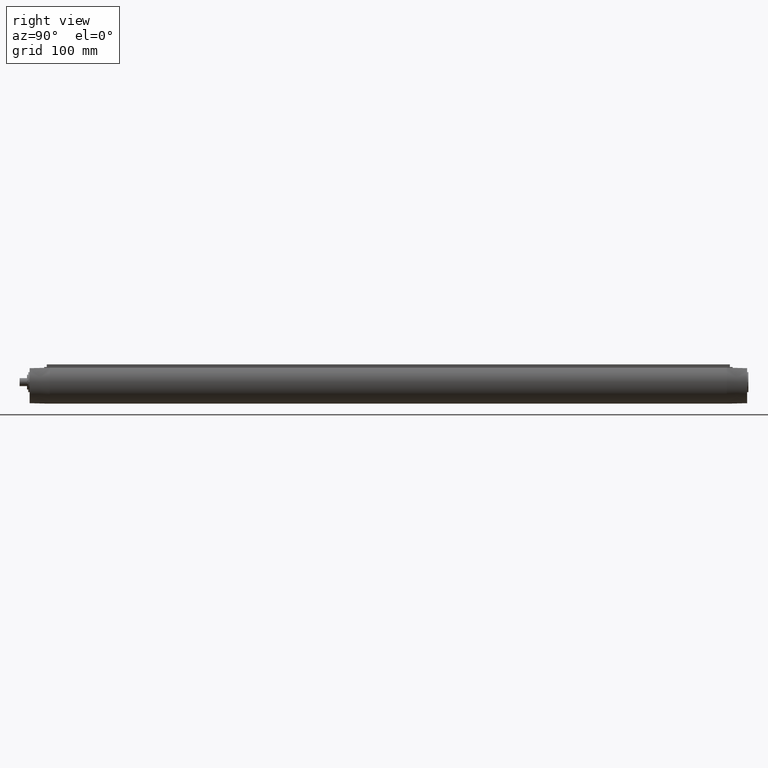
[diagram: clean part render]
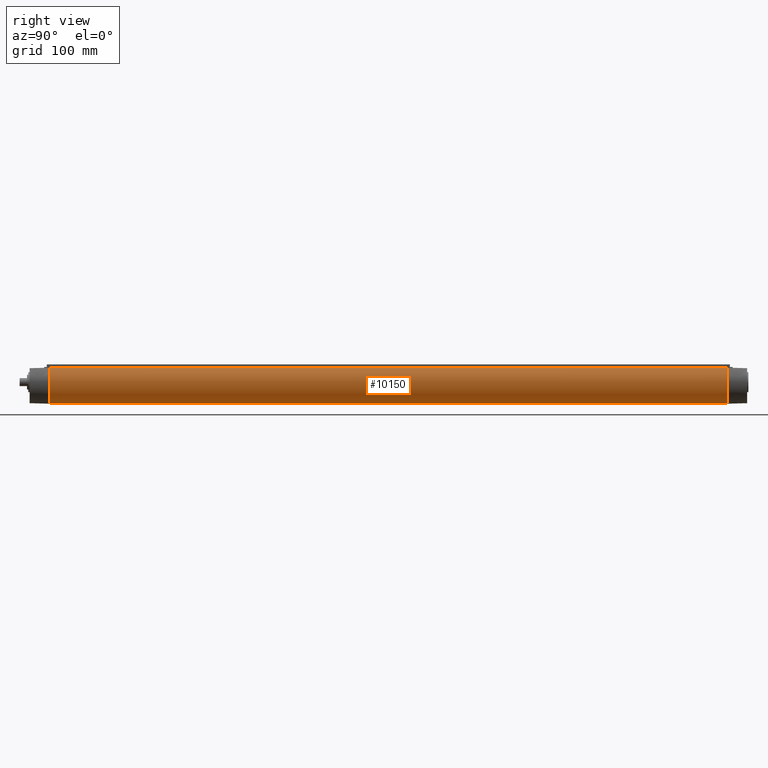
[diagram: same view with one face highlighted and labeled with its STEP entity id]
A machine part, right view. The second image highlights one B-rep face of the part: STEP entity #10150.
In plain terms, the highlighted cylindrical surface (edge-blend (fillet) strip) has radius 35 mm, axis along (0, -1, 0).
Its self-contained STEP definition (entity closure, byte-faithful):
#7560=CARTESIAN_POINT('',(-27.6179289592976,21.4999999999931,1038.));
#7570=VERTEX_POINT('',#7560);
#8490=CARTESIAN_POINT('',(-27.6179289592974,21.4999999999931,
31.9999999999995));
#8500=VERTEX_POINT('',#8490);
#9060=CARTESIAN_POINT('',(-14.1774468787578,-32.,32.));
#9070=VERTEX_POINT('',#9060);
#9120=CARTESIAN_POINT('',(9.13983384469752E-14,1.03672746705281E-13,
31.9999999999569));
#9130=DIRECTION('',(-2.66272560844217E-15,-3.0309311492029E-15,-1.));
#9140=DIRECTION('',(8.22233469308033E-30,1.,-3.0309311492029E-15));
#9150=AXIS2_PLACEMENT_3D('',#9120,#9130,#9140);
#9160=CIRCLE('',#9150,34.9999999999996);
#9170=EDGE_CURVE('',#9070,#8500,#9160,.T.);
#9860=CARTESIAN_POINT('',(1.77635683940025E-14,-1.77635683940025E-15,
1038.5));
#9870=DIRECTION('',(0.,0.,-1.));
#9880=DIRECTION('',(-1.,0.,0.));
#9890=AXIS2_PLACEMENT_3D('',#9860,#9870,#9880);
#9900=CYLINDRICAL_SURFACE('',#9890,35.);
#9910=ORIENTED_EDGE('',*,*,#9170,.F.);
#9920=CARTESIAN_POINT('',(-27.617928959283,21.4999999999999,1038.5));
#9930=DIRECTION('',(0.,0.,-1.));
#9940=VECTOR('',#9930,1.);
#9950=LINE('',#9920,#9940);
#9960=EDGE_CURVE('',#7570,#8500,#9950,.T.);
#9970=ORIENTED_EDGE('',*,*,#9960,.T.);
#9980=CARTESIAN_POINT('',(-2.06316723300643E-12,-8.94760572811992E-13,
1038.00000000003));
#9990=DIRECTION('',(4.30753842788904E-14,1.91811261020657E-14,1.));
#10000=DIRECTION('',(-1.,8.26234377748337E-28,4.30753842788904E-14));
#10010=AXIS2_PLACEMENT_3D('',#9980,#9990,#10000);
#10020=CIRCLE('',#10010,34.9999999999975);
#10030=CARTESIAN_POINT('',(-14.1774468787762,-32.0000000000869,
1037.99999999644));
#10040=VERTEX_POINT('',#10030);
#10050=EDGE_CURVE('',#7570,#10040,#10020,.T.);
#10060=ORIENTED_EDGE('',*,*,#10050,.F.);
#10070=CARTESIAN_POINT('',(-14.1774468787578,-32.,1038.5));
#10080=DIRECTION('',(0.,0.,1.));
#10090=VECTOR('',#10080,1.);
#10100=LINE('',#10070,#10090);
#10110=EDGE_CURVE('',#9070,#10040,#10100,.T.);
#10120=ORIENTED_EDGE('',*,*,#10110,.T.);
#10130=EDGE_LOOP('',(#10120,#10060,#9970,#9910));
#10140=FACE_OUTER_BOUND('',#10130,.T.);
#10150=ADVANCED_FACE('',(#10140),#9900,.T.);